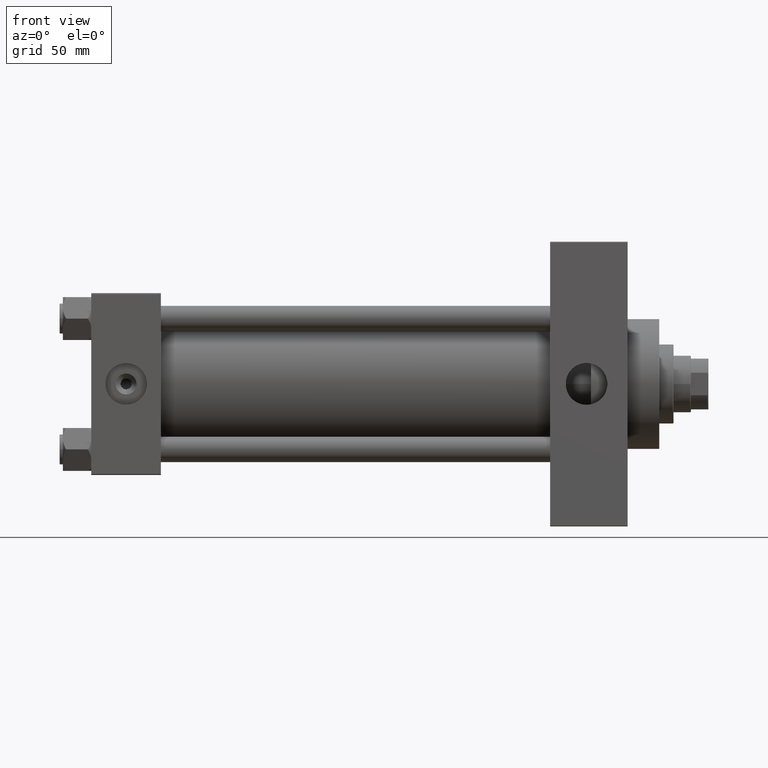
[diagram: clean part render]
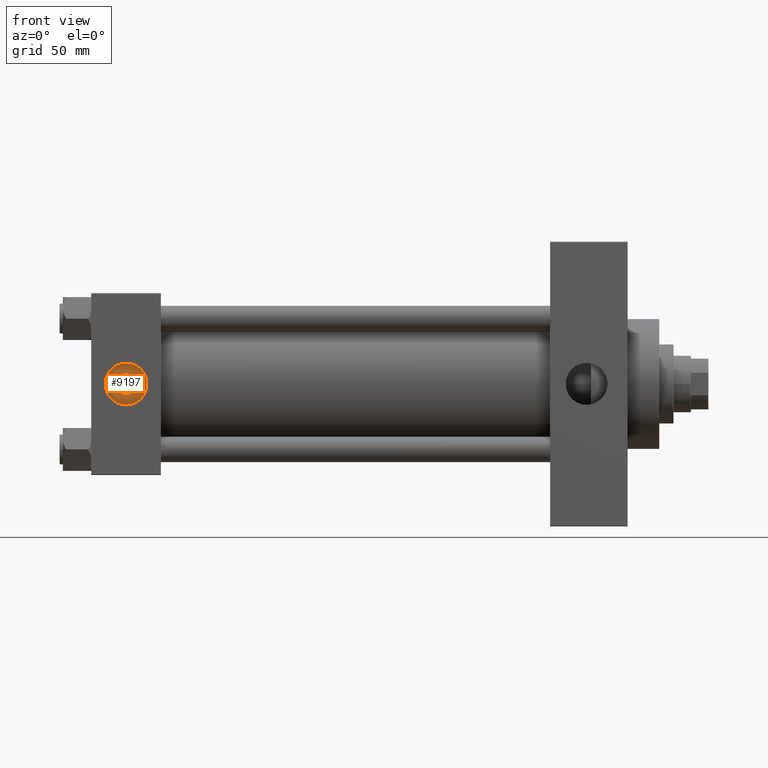
[diagram: same view with one face highlighted and labeled with its STEP entity id]
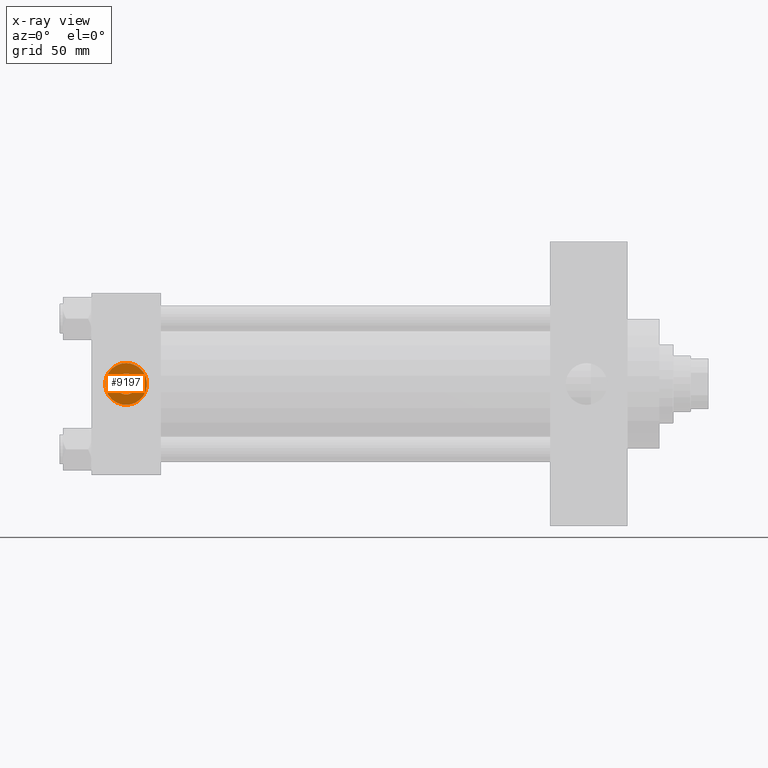
[diagram: x-ray of the same camera — body ghosted, the highlighted face saturated]
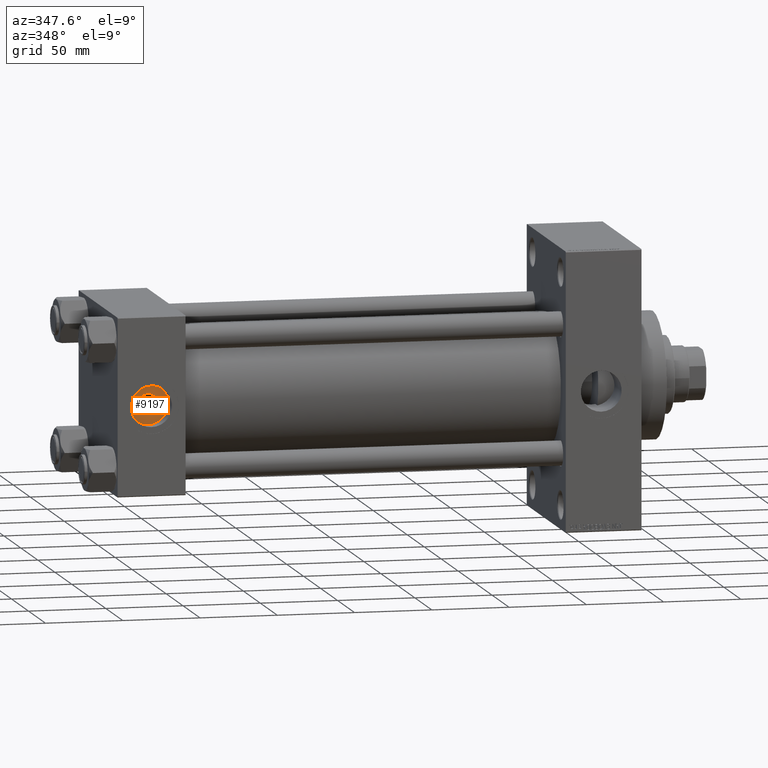
[diagram: same view with one face highlighted and labeled with its STEP entity id]
A machine part, front view. The second image highlights one B-rep face of the part: STEP entity #9197.
The next image is the same camera in x-ray: the body ghosted, the highlighted face saturated — about 0% of this face is hidden behind the body in this view.
A second angle (auxiliary view) of the same face is appended — the face is thin or edge-on in the first view.
In plain terms, the highlighted planar face has unit normal (0, -1, -0).
Its self-contained STEP definition (entity closure, byte-faithful):
#1530 = DIRECTION ( 'NONE',  ( 0.000000000000000000, -1.000000000000000000, -8.673617379884036705E-17 ) ) ;
#4498 = EDGE_CURVE ( 'NONE', #42805, #25957, #24987, .T. ) ;
#6727 = FACE_OUTER_BOUND ( 'NONE', #22843, .T. ) ;
#8657 = EDGE_CURVE ( 'NONE', #42539, #32014, #32834, .T. ) ;
#9197 = ADVANCED_FACE ( 'NONE', ( #39726, #6727 ), #21419, .T. ) ;
#10067 = CIRCLE ( 'NONE', #27768, 13.22000000000000419 ) ;
#11932 = DIRECTION ( 'NONE',  ( 0.000000000000000000, 0.000000000000000000, -1.000000000000000000 ) ) ;
#12407 = DIRECTION ( 'NONE',  ( 0.000000000000000000, -1.000000000000000000, -8.673617379884036705E-17 ) ) ;
#13713 = EDGE_LOOP ( 'NONE', ( #36138, #17950 ) ) ;
#15261 = DIRECTION ( 'NONE',  ( 0.000000000000000000, 0.000000000000000000, -1.000000000000000000 ) ) ;
#16682 = CARTESIAN_POINT ( 'NONE',  ( 22.00000000000000000, -46.60000000000000853, 9.454242944073596692E-16 ) ) ;
#16938 = AXIS2_PLACEMENT_3D ( 'NONE', #39225, #20695, #39708 ) ;
#17950 = ORIENTED_EDGE ( 'NONE', *, *, #20395, .T. ) ;
#19341 = DIRECTION ( 'NONE',  ( 0.000000000000000000, -1.000000000000000000, -8.673617379884036705E-17 ) ) ;
#19397 = CARTESIAN_POINT ( 'NONE',  ( 22.00000000000000000, -46.60000000000000853, 9.454242944073594720E-16 ) ) ;
#20371 = AXIS2_PLACEMENT_3D ( 'NONE', #16682, #27278, #24383 ) ;
#20395 = EDGE_CURVE ( 'NONE', #25957, #42805, #37702, .T. ) ;
#20695 = DIRECTION ( 'NONE',  ( -0.000000000000000000, 1.000000000000000000, 8.673617379884036705E-17 ) ) ;
#21419 = PLANE ( 'NONE',  #28181 ) ;
#21870 = EDGE_CURVE ( 'NONE', #32014, #42539, #10067, .T. ) ;
#22843 = EDGE_LOOP ( 'NONE', ( #46131, #31844 ) ) ;
#24383 = DIRECTION ( 'NONE',  ( 0.000000000000000000, 0.000000000000000000, -1.000000000000000000 ) ) ;
#24987 = CIRCLE ( 'NONE', #20371, 6.640000000000201297 ) ;
#25957 = VERTEX_POINT ( 'NONE', #43236 ) ;
#26587 = CARTESIAN_POINT ( 'NONE',  ( 22.00000000000000000, -46.60000000000000853, -13.22000000000000242 ) ) ;
#27097 = DIRECTION ( 'NONE',  ( 0.000000000000000000, 8.673617379884036705E-17, -1.000000000000000000 ) ) ;
#27278 = DIRECTION ( 'NONE',  ( -0.000000000000000000, 1.000000000000000000, 8.673617379884036705E-17 ) ) ;
#27768 = AXIS2_PLACEMENT_3D ( 'NONE', #19397, #12407, #11932 ) ;
#28181 = AXIS2_PLACEMENT_3D ( 'NONE', #37706, #1530, #27097 ) ;
#31281 = AXIS2_PLACEMENT_3D ( 'NONE', #44631, #19341, #15261 ) ;
#31844 = ORIENTED_EDGE ( 'NONE', *, *, #8657, .T. ) ;
#32014 = VERTEX_POINT ( 'NONE', #26587 ) ;
#32834 = CIRCLE ( 'NONE', #31281, 13.22000000000000419 ) ;
#36138 = ORIENTED_EDGE ( 'NONE', *, *, #4498, .T. ) ;
#37009 = CARTESIAN_POINT ( 'NONE',  ( 22.00000000000000000, -46.60000000000000853, 13.22000000000000597 ) ) ;
#37702 = CIRCLE ( 'NONE', #16938, 6.640000000000201297 ) ;
#37706 = CARTESIAN_POINT ( 'NONE',  ( 22.00000000000000000, -46.60000000000000853, 9.454242944073594720E-16 ) ) ;
#39225 = CARTESIAN_POINT ( 'NONE',  ( 22.00000000000000000, -46.60000000000000853, 9.454242944073596692E-16 ) ) ;
#39708 = DIRECTION ( 'NONE',  ( 0.000000000000000000, 0.000000000000000000, -1.000000000000000000 ) ) ;
#39726 = FACE_BOUND ( 'NONE', #13713, .T. ) ;
#42539 = VERTEX_POINT ( 'NONE', #37009 ) ;
#42805 = VERTEX_POINT ( 'NONE', #44174 ) ;
#43236 = CARTESIAN_POINT ( 'NONE',  ( 22.00000000000000000, -46.60000000000000853, 6.640000000000202185 ) ) ;
#44174 = CARTESIAN_POINT ( 'NONE',  ( 22.00000000000000000, -46.60000000000000853, -6.640000000000199520 ) ) ;
#44631 = CARTESIAN_POINT ( 'NONE',  ( 22.00000000000000000, -46.60000000000000853, 9.454242944073594720E-16 ) ) ;
#46131 = ORIENTED_EDGE ( 'NONE', *, *, #21870, .T. ) ;